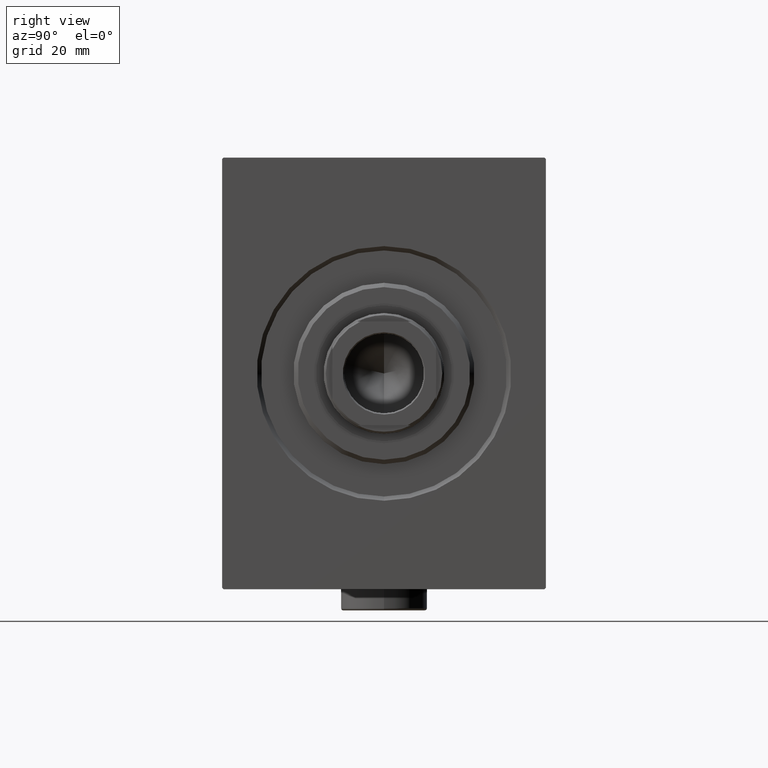
[diagram: clean part render]
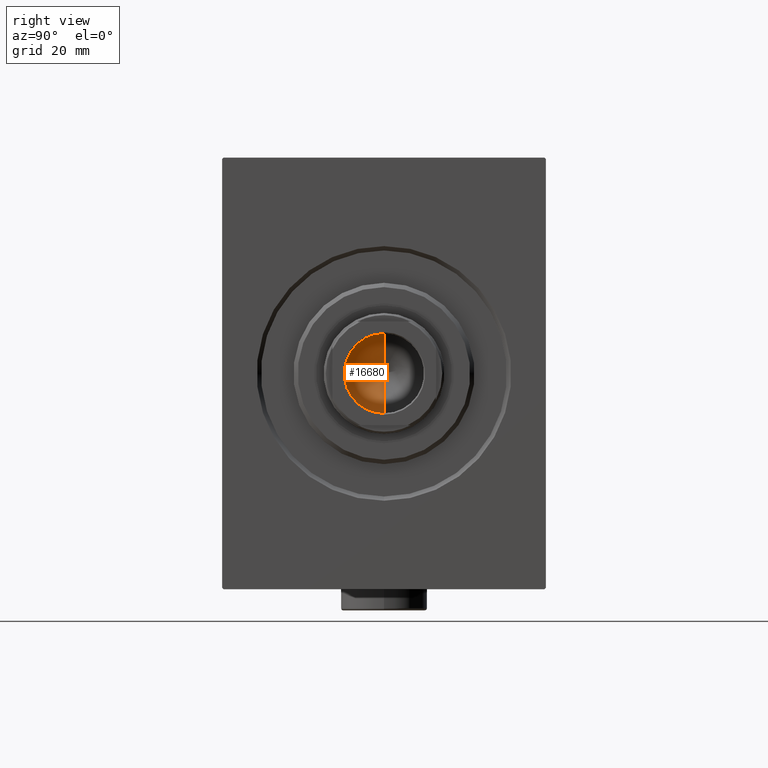
[diagram: same view with one face highlighted and labeled with its STEP entity id]
A machine part, right view. The second image highlights one B-rep face of the part: STEP entity #16680.
In plain terms, the highlighted conical surface has half-angle 59 deg.
Its self-contained STEP definition (entity closure, byte-faithful):
#948 = VECTOR ( 'NONE', #33908, 1000.000000000000000 ) ;
#2073 = DIRECTION ( 'NONE',  ( 1.000000000000000000, 0.000000000000000000, 0.000000000000000000 ) ) ;
#3442 = FACE_OUTER_BOUND ( 'NONE', #8738, .T. ) ;
#7150 = CARTESIAN_POINT ( 'NONE',  ( 9.249999999999994671, 0.000000000000000000, 71.00000000000001421 ) ) ;
#7154 = VERTEX_POINT ( 'NONE', #38408 ) ;
#8738 = EDGE_LOOP ( 'NONE', ( #12532, #43784, #34236 ) ) ;
#8833 = CARTESIAN_POINT ( 'NONE',  ( 9.249999999999994671, 0.000000000000000000, 71.00000000000001421 ) ) ;
#10430 = AXIS2_PLACEMENT_3D ( 'NONE', #13557, #27415, #2073 ) ;
#10645 = EDGE_CURVE ( 'NONE', #7154, #14590, #34606, .T. ) ;
#12532 = ORIENTED_EDGE ( 'NONE', *, *, #10645, .F. ) ;
#13557 = CARTESIAN_POINT ( 'NONE',  ( 0.000000000000000000, 0.000000000000000000, 71.00000000000001421 ) ) ;
#13873 = CARTESIAN_POINT ( 'NONE',  ( 0.000000000000000000, 0.000000000000000000, 71.00000000000001421 ) ) ;
#14566 = CONICAL_SURFACE ( 'NONE', #29779, 9.249999999999994671, 1.029744258676652535 ) ;
#14590 = VERTEX_POINT ( 'NONE', #8833 ) ;
#16680 = ADVANCED_FACE ( 'NONE', ( #3442 ), #14566, .F. ) ;
#23726 = DIRECTION ( 'NONE',  ( 0.8571673007021113344, 0.000000000000000000, 0.5150380749100558209 ) ) ;
#26886 = CARTESIAN_POINT ( 'NONE',  ( -9.249999999999994671, 1.132798289211300909E-15, 71.00000000000001421 ) ) ;
#27250 = CARTESIAN_POINT ( 'NONE',  ( -9.249999999999994671, 1.132798289211300909E-15, 71.00000000000001421 ) ) ;
#27415 = DIRECTION ( 'NONE',  ( -0.000000000000000000, -0.000000000000000000, 1.000000000000000000 ) ) ;
#27942 = DIRECTION ( 'NONE',  ( 1.000000000000000000, 0.000000000000000000, 0.000000000000000000 ) ) ;
#29022 = VERTEX_POINT ( 'NONE', #27250 ) ;
#29750 = VECTOR ( 'NONE', #23726, 1000.000000000000000 ) ;
#29779 = AXIS2_PLACEMENT_3D ( 'NONE', #13873, #41563, #27942 ) ;
#30009 = CIRCLE ( 'NONE', #10430, 9.249999999999994671 ) ;
#30282 = LINE ( 'NONE', #26886, #948 ) ;
#32264 = EDGE_CURVE ( 'NONE', #7154, #29022, #30282, .T. ) ;
#33908 = DIRECTION ( 'NONE',  ( -0.8571673007021113344, 1.049727191138617463E-16, 0.5150380749100558209 ) ) ;
#34236 = ORIENTED_EDGE ( 'NONE', *, *, #35281, .T. ) ;
#34606 = LINE ( 'NONE', #7150, #29750 ) ;
#35281 = EDGE_CURVE ( 'NONE', #29022, #14590, #30009, .T. ) ;
#38408 = CARTESIAN_POINT ( 'NONE',  ( -7.378158201303129876E-15, 0.000000000000000000, 65.44203927399505005 ) ) ;
#41563 = DIRECTION ( 'NONE',  ( -0.000000000000000000, -0.000000000000000000, 1.000000000000000000 ) ) ;
#43784 = ORIENTED_EDGE ( 'NONE', *, *, #32264, .T. ) ;